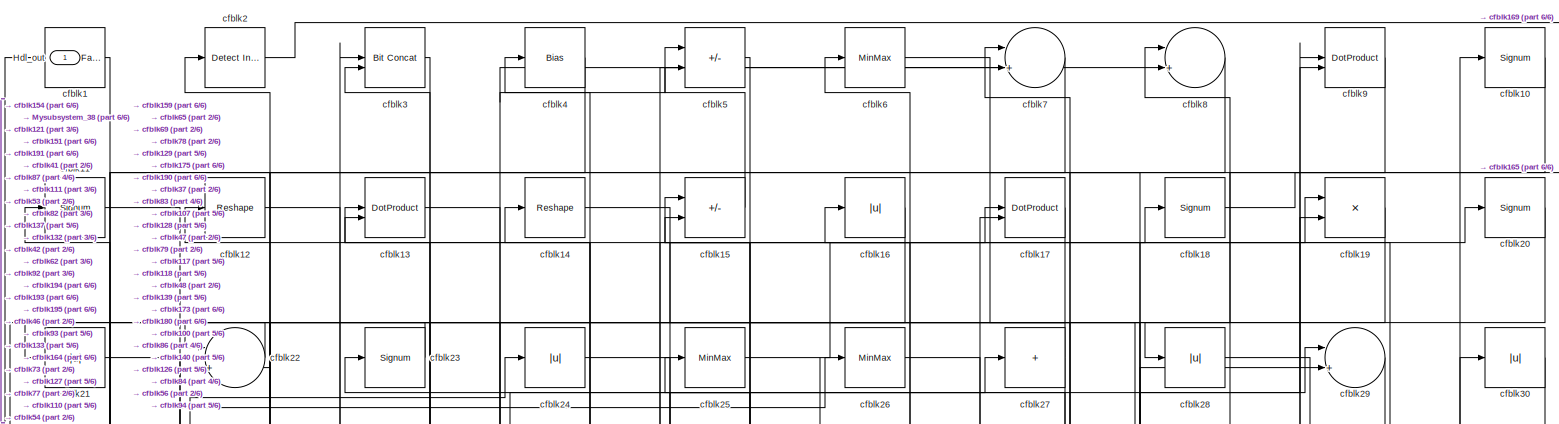
[diagram: root canvas - part 1/6, full width, top band]
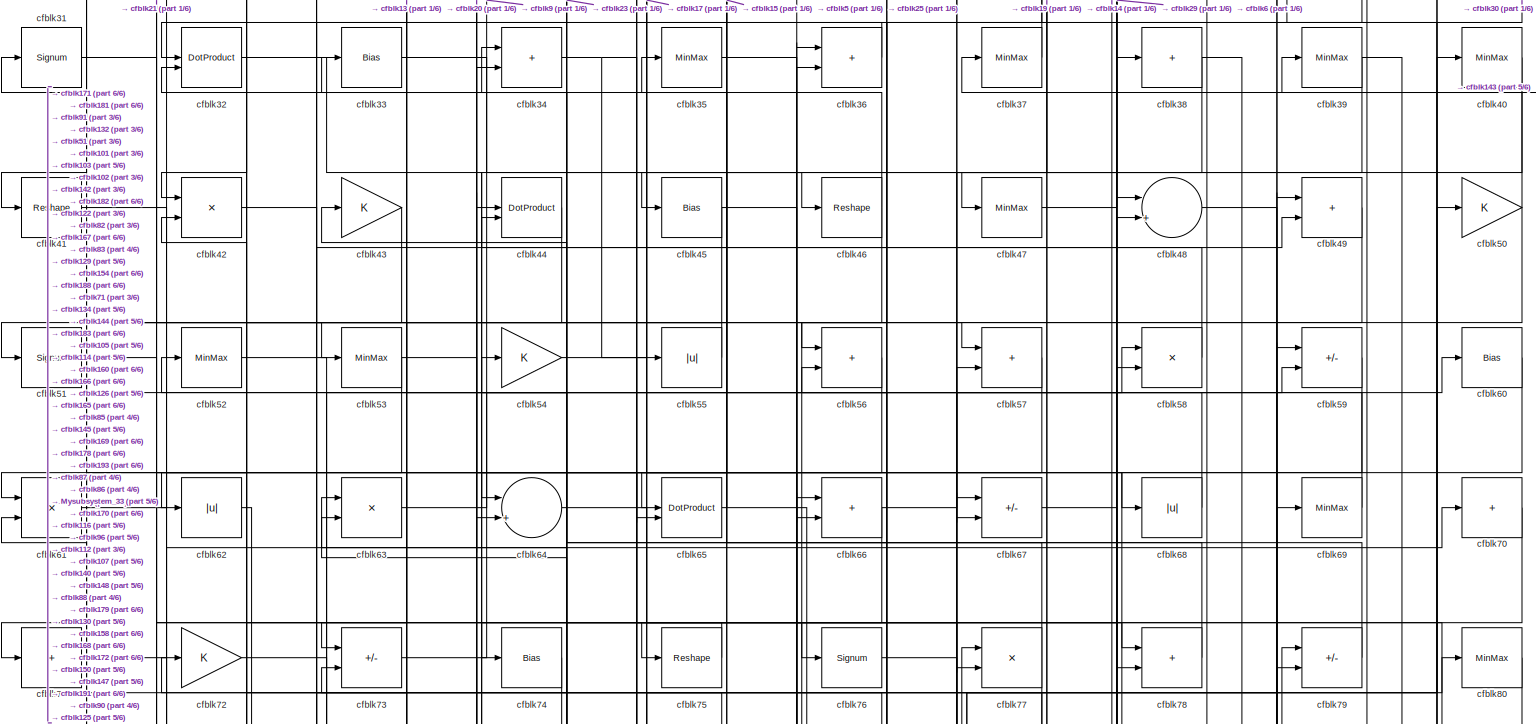
[diagram: root canvas - part 2/6, full width, top band]
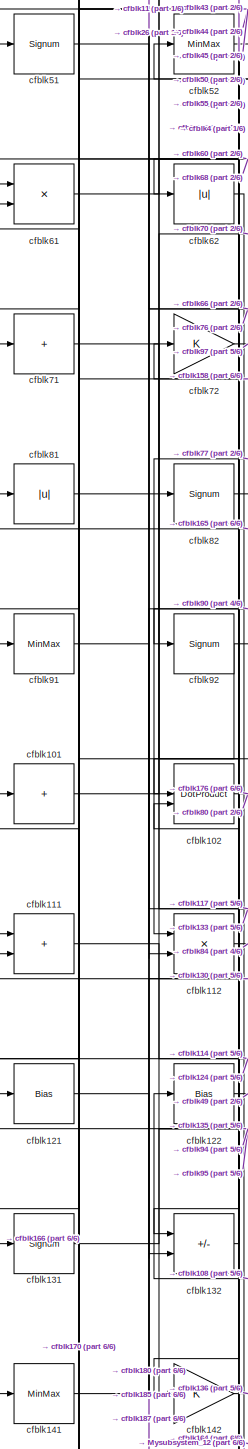
[diagram: root canvas - part 3/6, middle left region]
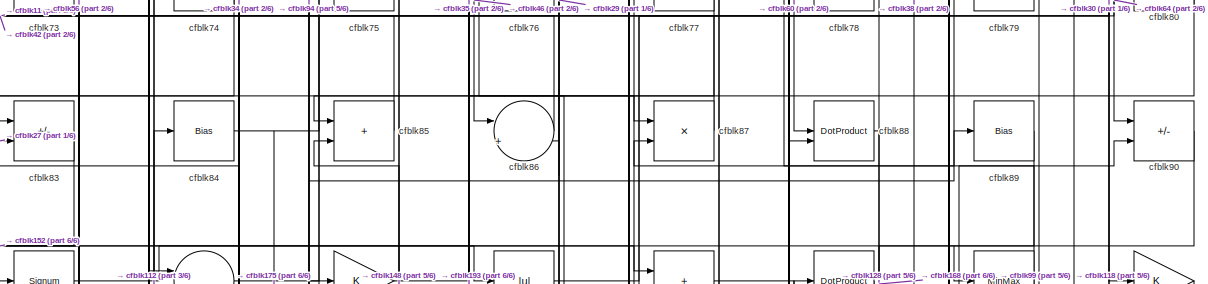
[diagram: root canvas - part 4/6, full width, middle band]
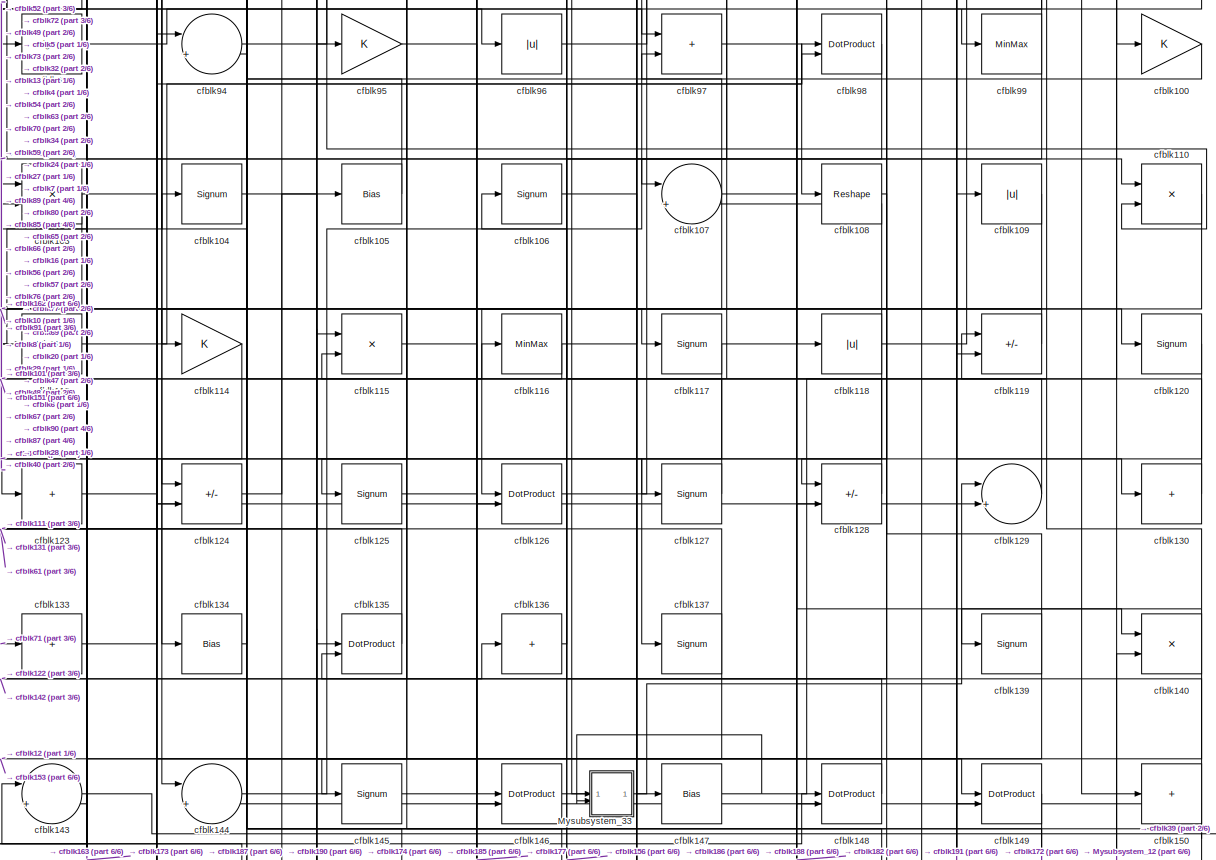
[diagram: root canvas - part 5/6, full width, middle band]
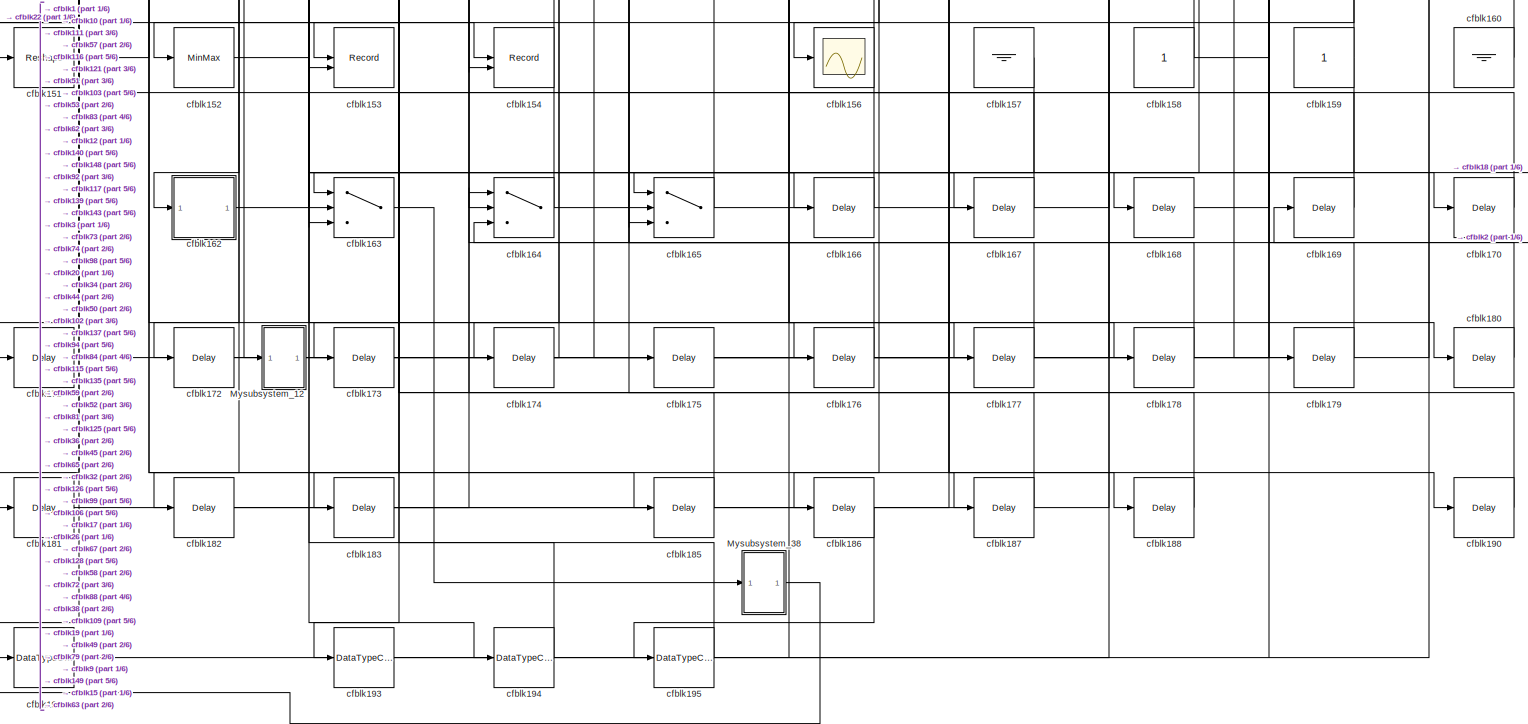
[diagram: root canvas - part 6/6, full width, bottom band]
MODEL slx_bdf30b50ef6f
KIND model
CONFIG AbsTol = auto
CONFIG EnableMultiTasking = off
CONFIG FixedStep = auto
CONFIG MaxStep = auto
CONFIG MinStep = auto
CONFIG RelTol = 1e-3
CONFIG SampleTimeConstraint = Unconstrained
CONFIG SolverName = VariableStepAuto
CONFIG StartTime = 0.0
CONFIG StopTime = 10.0
BLOCK [Outport] Hdl_out
  OutDataTypeStr = uint8
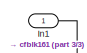
[diagram: Mysubsystem_12 - part 1/3, top left region]
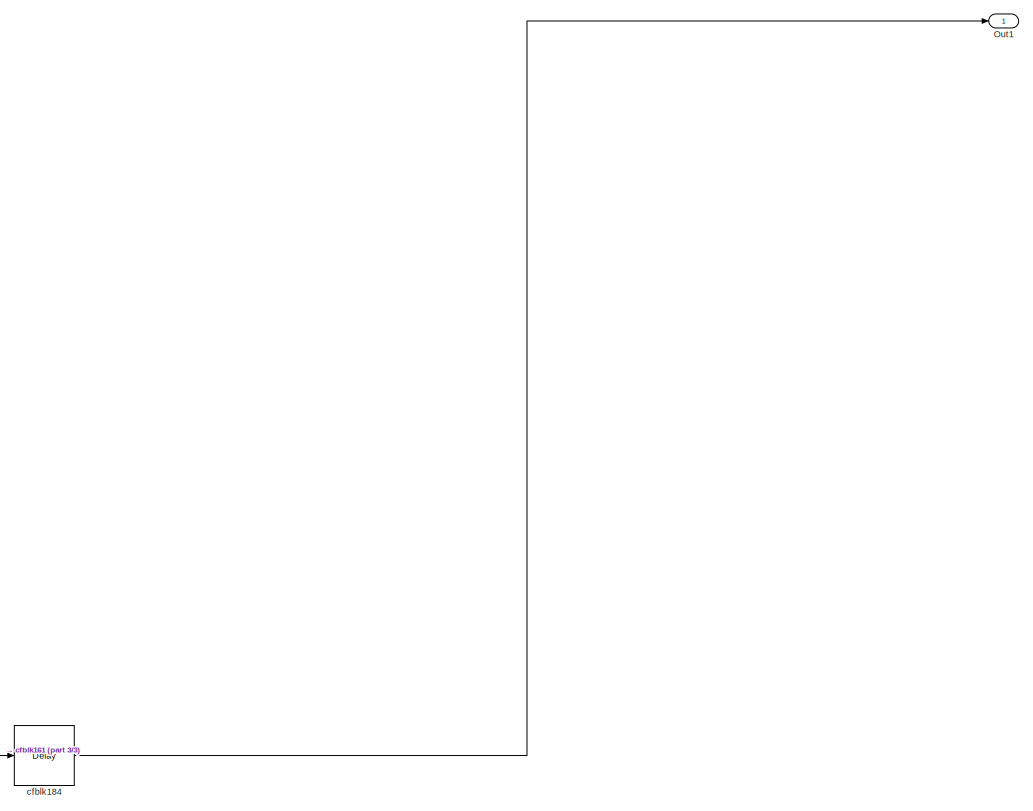
[diagram: Mysubsystem_12 - part 2/3, bottom center region]
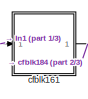
[diagram: Mysubsystem_12 - part 3/3, bottom left region]
BLOCK [SubSystem] Mysubsystem_12
  RTWFcnName = Mysubsystem_12
  RTWFcnNameOpts = User specified
  RTWFileNameOpts = Use function name
  RTWSystemCode = Reusable function
  TreatAsAtomicUnit = on
BLOCK [Inport] Mysubsystem_12/In1
BLOCK [Outport] Mysubsystem_12/Out1
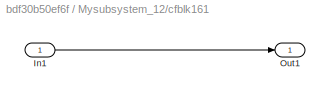
BLOCK [SubSystem] Mysubsystem_12/cfblk161
  LibrarySourceBlock = hdlsllib/Ports &\nSubsystems/Subsystem
BLOCK [Inport] Mysubsystem_12/cfblk161/In1
BLOCK [Outport] Mysubsystem_12/cfblk161/Out1
BLOCK [Delay] Mysubsystem_12/cfblk184
  InputPortMap = u0
  SampleTime = 1
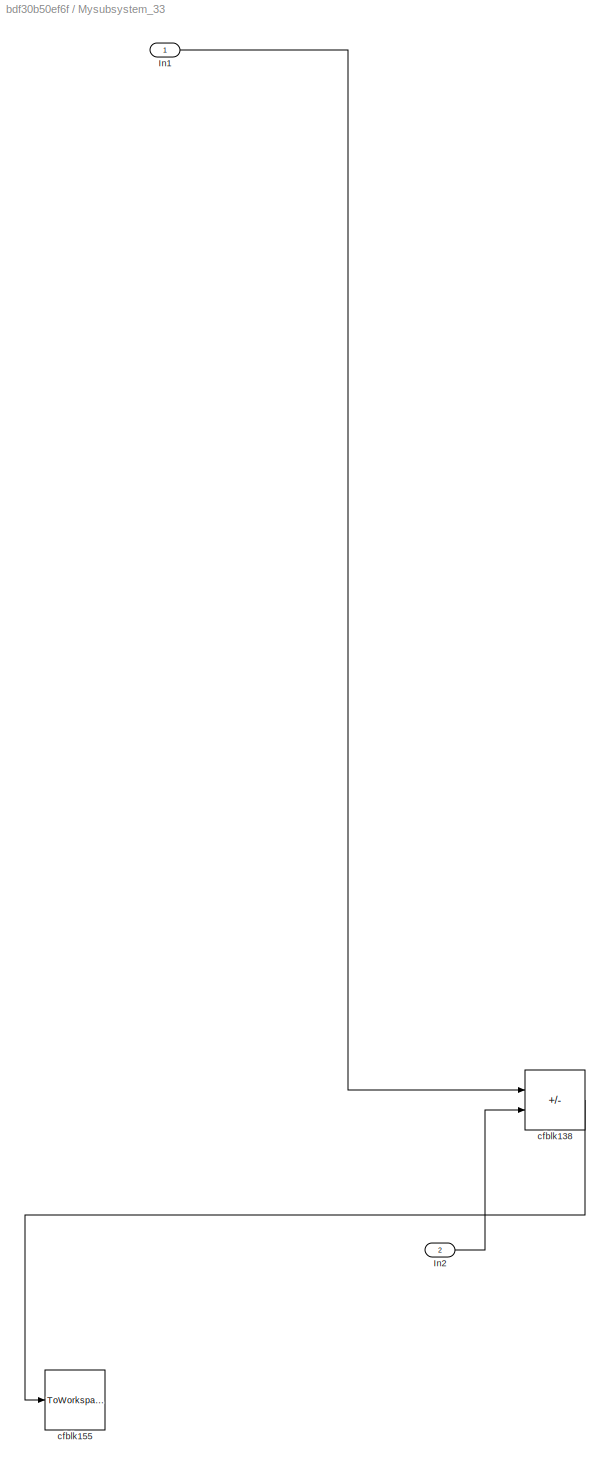
BLOCK [SubSystem] Mysubsystem_33
  RTWFcnName = Mysubsystem_33
  RTWFcnNameOpts = User specified
  RTWFileNameOpts = Use function name
  RTWSystemCode = Reusable function
  TreatAsAtomicUnit = on
BLOCK [Inport] Mysubsystem_33/In1
BLOCK [Inport] Mysubsystem_33/In2
  Port = 2
BLOCK [Sum] Mysubsystem_33/cfblk138
  IconShape = rectangular
  Inputs = +-
BLOCK [ToWorkspace] Mysubsystem_33/cfblk155
  MaxDataPoints = inf
  SampleTime = -1
  SaveFormat = Timeseries
  VariableName = simout
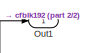
[diagram: Mysubsystem_38 - part 1/2, top left region]
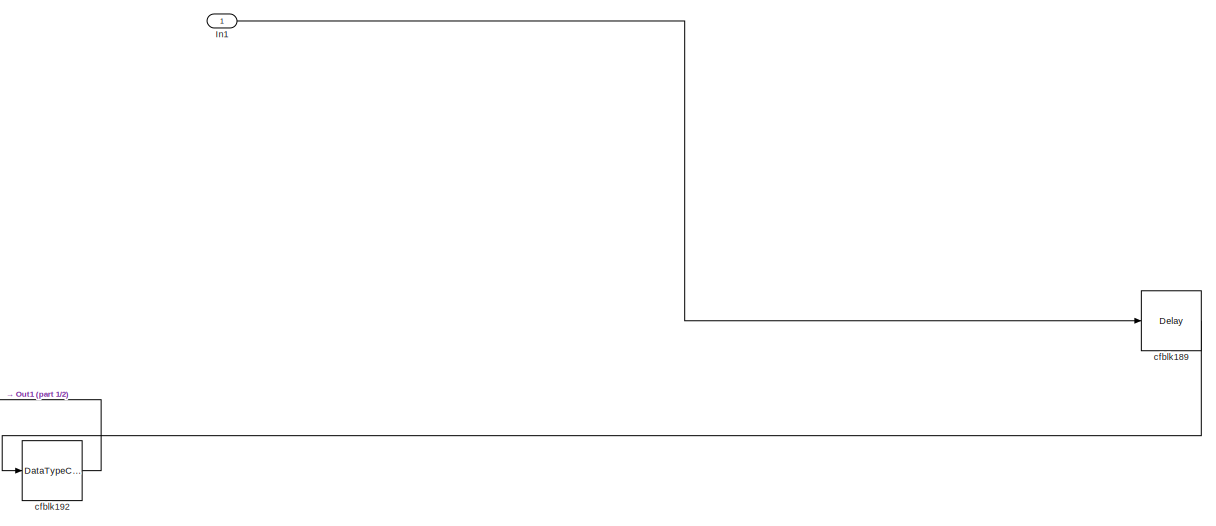
[diagram: Mysubsystem_38 - part 2/2, full width, bottom band]
BLOCK [SubSystem] Mysubsystem_38
  RTWFcnName = Mysubsystem_38
  RTWFcnNameOpts = User specified
  RTWFileNameOpts = Use function name
  RTWSystemCode = Reusable function
  TreatAsAtomicUnit = on
BLOCK [Inport] Mysubsystem_38/In1
BLOCK [Outport] Mysubsystem_38/Out1
BLOCK [Delay] Mysubsystem_38/cfblk189
  InputPortMap = u0
  SampleTime = 1
BLOCK [DataTypeConversion] Mysubsystem_38/cfblk192
  OutDataTypeStr = uint8
  RndMeth = Floor
  SaturateOnIntegerOverflow = off
BLOCK [Reference] cfblk1  REF=hdlsllib/Logic and Bit
Operations/Detect Fall
Nonpositive
  SourceBlock = hdlsllib/Logic and Bit\nOperations/Detect Fall\nNonpositive
  SourceType = Detect Fall Nonpositive
BLOCK [Signum] cfblk10
BLOCK [Gain] cfblk100
  OutDataTypeStr = uint8
BLOCK [Sum] cfblk101
  IconShape = rectangular
  Inputs = +
  OutDataTypeStr = uint8
BLOCK [DotProduct] cfblk102
  OutDataTypeStr = uint8
BLOCK [Product] cfblk103
  Inputs = */
  OutDataTypeStr = uint8
  RndMeth = Zero
  SaturateOnIntegerOverflow = on
BLOCK [Signum] cfblk104
BLOCK [Bias] cfblk105
  Bias = 0.0
  SaturateOnIntegerOverflow = off
BLOCK [Signum] cfblk106
BLOCK [Sum] cfblk107
  Inputs = |++
  OutDataTypeStr = uint8
BLOCK [Reshape] cfblk108
BLOCK [Abs] cfblk109
  OutDataTypeStr = uint8
  SaturateOnIntegerOverflow = off
BLOCK [Signum] cfblk11
BLOCK [Product] cfblk110
  Inputs = */
  OutDataTypeStr = uint8
  RndMeth = Zero
  SaturateOnIntegerOverflow = on
BLOCK [Sum] cfblk111
  IconShape = rectangular
  OutDataTypeStr = uint8
BLOCK [Product] cfblk112
  Inputs = */
  OutDataTypeStr = uint8
  RndMeth = Zero
  SaturateOnIntegerOverflow = on
BLOCK [MinMax] cfblk113
  OutDataTypeStr = uint8
BLOCK [Gain] cfblk114
  OutDataTypeStr = uint8
BLOCK [Product] cfblk115
  Inputs = */
  OutDataTypeStr = uint8
  RndMeth = Zero
  SaturateOnIntegerOverflow = on
BLOCK [MinMax] cfblk116
  OutDataTypeStr = uint8
BLOCK [Signum] cfblk117
BLOCK [Abs] cfblk118
  OutDataTypeStr = uint8
  SaturateOnIntegerOverflow = off
BLOCK [Sum] cfblk119
  IconShape = rectangular
  Inputs = +-
  OutDataTypeStr = uint8
BLOCK [Reshape] cfblk12
BLOCK [Signum] cfblk120
BLOCK [Bias] cfblk121
  Bias = 0.0
  SaturateOnIntegerOverflow = off
BLOCK [Bias] cfblk122
  Bias = 0.0
  SaturateOnIntegerOverflow = off
BLOCK [Sum] cfblk123
  IconShape = rectangular
  Inputs = +
  OutDataTypeStr = uint8
BLOCK [Sum] cfblk124
  IconShape = rectangular
  Inputs = +-
  OutDataTypeStr = uint8
BLOCK [Signum] cfblk125
BLOCK [DotProduct] cfblk126
  OutDataTypeStr = uint8
BLOCK [Signum] cfblk127
BLOCK [Sum] cfblk128
  IconShape = rectangular
  Inputs = +-
  OutDataTypeStr = uint8
BLOCK [Sum] cfblk129
  Inputs = |++
  OutDataTypeStr = uint8
BLOCK [DotProduct] cfblk13
  OutDataTypeStr = uint8
BLOCK [Sum] cfblk130
  IconShape = rectangular
  Inputs = +
  OutDataTypeStr = uint8
BLOCK [Signum] cfblk131
BLOCK [Sum] cfblk132
  IconShape = rectangular
  Inputs = +-
  OutDataTypeStr = uint8
BLOCK [Sum] cfblk133
  IconShape = rectangular
  Inputs = +
  OutDataTypeStr = uint8
BLOCK [Bias] cfblk134
  Bias = 0.0
  SaturateOnIntegerOverflow = off
BLOCK [DotProduct] cfblk135
  OutDataTypeStr = uint8
BLOCK [Sum] cfblk136
  IconShape = rectangular
  Inputs = +
  OutDataTypeStr = uint8
BLOCK [Signum] cfblk137
BLOCK [Signum] cfblk139
BLOCK [Reshape] cfblk14
BLOCK [Product] cfblk140
  Inputs = */
  OutDataTypeStr = uint8
  RndMeth = Zero
  SaturateOnIntegerOverflow = on
BLOCK [MinMax] cfblk141
  OutDataTypeStr = uint8
BLOCK [Gain] cfblk142
  OutDataTypeStr = uint8
BLOCK [Sum] cfblk143
  Inputs = |++
  OutDataTypeStr = uint8
BLOCK [Sum] cfblk144
  Inputs = |++
  OutDataTypeStr = uint8
BLOCK [Signum] cfblk145
BLOCK [DotProduct] cfblk146
  OutDataTypeStr = uint8
BLOCK [Bias] cfblk147
  Bias = 0.0
  SaturateOnIntegerOverflow = off
BLOCK [DotProduct] cfblk148
  OutDataTypeStr = uint8
BLOCK [DotProduct] cfblk149
  OutDataTypeStr = uint8
BLOCK [Sum] cfblk15
  IconShape = rectangular
  Inputs = +-
  OutDataTypeStr = uint8
BLOCK [Sum] cfblk150
  IconShape = rectangular
  Inputs = +
  OutDataTypeStr = uint8
BLOCK [Reshape] cfblk151
BLOCK [MinMax] cfblk152
  OutDataTypeStr = uint8
BLOCK [Record] cfblk153
  CompatibilityTag = XY
  FileSettingsInternal = {"entries":[{"content":{"excelSettings":{"content":{},"type":"Streamout.ExcelSettings"}},"type":"Streamout.FileSettingStorage","uuid":""}],"packageUris":["http:\/\/schema.mathworks.com\/mf0\/streamout_blocks\/R2020a"],"version":"1.0"}
  Layout = [1 1]
  SignalsInternal = {"entries":[{"content":{"signals":[{"content":{"blockPath":[],"dimensions":[1],"domain":"","lineColor":"#a2142f","plots":[1],"port":1,"signalID":27292,"signalName":"cfblk139"},"type":"RecordBlkView.Signal","uuid":""},{"content":{"blockPath":[],"dimensions":[1],"domain":"","lineColor":"#139fff","plots":[1],"port":2,"signalID":27295,"signalName":"cfblk140"},"type":"RecordBlkView.Signal","uuid":""}]}...<+144ch>
  VisualizationBindings = {"xyplotplugin":{"info":[{"series":[{"bindingParametersList":[{"parameter":"X-Axis","signalID":27292,"signalName":"cfblk139"},{"parameter":"Y-Axis","signalID":27295,"signalName":"cfblk140"}],"seriesID":50511}],"subplotID":1}]}}
  st = -1
BLOCK [Record] cfblk154
  CompatibilityTag = XY
  FileSettingsInternal = {"entries":[{"content":{"excelSettings":{"content":{},"type":"Streamout.ExcelSettings"}},"type":"Streamout.FileSettingStorage","uuid":""}],"packageUris":["http:\/\/schema.mathworks.com\/mf0\/streamout_blocks\/R2020a"],"version":"1.0"}
  Layout = [1 1]
  SignalsInternal = {"entries":[{"content":{"signals":[{"content":{"blockPath":[],"dimensions":[1],"domain":"","lineColor":"#a2142f","plots":[1],"port":1,"signalID":27284,"signalName":"cfblk22"},"type":"RecordBlkView.Signal","uuid":""},{"content":{"blockPath":[],"dimensions":[1],"domain":"","lineColor":"#139fff","plots":[1],"port":2,"signalID":27287,"signalName":"cfblk50"},"type":"RecordBlkView.Signal","uuid":""}]},"...<+142ch>
  VisualizationBindings = {"xyplotplugin":{"info":[{"series":[{"bindingParametersList":[{"parameter":"X-Axis","signalID":27284,"signalName":"cfblk22"},{"parameter":"Y-Axis","signalID":27287,"signalName":"cfblk50"}],"seriesID":3636}],"subplotID":1}]}}
  st = -1
BLOCK [Scope] cfblk156
  Floating = off
  NumInputPorts = 1
  ScopeSpecificationString = Simulink.scopes.TimeScopeBlockCfg('CurrentConfiguration', extmgr.ConfigurationSet(extmgr.Configuration('Core','General UI',true),extmgr.Configuration('Core','Source UI',true),extmgr.Configuration('Sources','WiredSimulink',true,'DataLoggingVariableName','ScopeData2','DataLoggingSaveFormat','Array','DataLoggingLimitDataPoints',true,'DataLoggingDecimation','1'),extmgr.Configuration('Visuals','Time Do...<+868ch>
BLOCK [Ground] cfblk157
BLOCK [Constant] cfblk158
  OutDataTypeStr = uint8
  SampleTime = -1
BLOCK [Constant] cfblk159
  OutDataTypeStr = uint8
  SampleTime = -1
BLOCK [Abs] cfblk16
  OutDataTypeStr = uint8
  SaturateOnIntegerOverflow = off
BLOCK [Ground] cfblk160
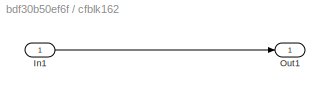
BLOCK [SubSystem] cfblk162
  LibrarySourceBlock = hdlsllib/Ports &\nSubsystems/Subsystem
BLOCK [Inport] cfblk162/In1
BLOCK [Outport] cfblk162/Out1
BLOCK [Switch] cfblk163
  InputSameDT = off
  OutDataTypeStr = uint8
  SaturateOnIntegerOverflow = off
BLOCK [Switch] cfblk164
  InputSameDT = off
  OutDataTypeStr = uint8
  SaturateOnIntegerOverflow = off
BLOCK [Switch] cfblk165
  InputSameDT = off
  OutDataTypeStr = uint8
  SaturateOnIntegerOverflow = off
BLOCK [Delay] cfblk166
  InputPortMap = u0
  SampleTime = 1
BLOCK [Delay] cfblk167
  InputPortMap = u0
  SampleTime = 1
BLOCK [Delay] cfblk168
  InputPortMap = u0
  SampleTime = 1
BLOCK [Delay] cfblk169
  InputPortMap = u0
  SampleTime = 1
BLOCK [DotProduct] cfblk17
  OutDataTypeStr = uint8
BLOCK [Delay] cfblk170
  InputPortMap = u0
  SampleTime = 1
BLOCK [Delay] cfblk171
  InputPortMap = u0
  SampleTime = 1
BLOCK [Delay] cfblk172
  InputPortMap = u0
  SampleTime = 1
BLOCK [Delay] cfblk173
  InputPortMap = u0
  SampleTime = 1
BLOCK [Delay] cfblk174
  InputPortMap = u0
  SampleTime = 1
BLOCK [Delay] cfblk175
  InputPortMap = u0
  SampleTime = 1
BLOCK [Delay] cfblk176
  InputPortMap = u0
  SampleTime = 1
BLOCK [Delay] cfblk177
  InputPortMap = u0
  SampleTime = 1
BLOCK [Delay] cfblk178
  InputPortMap = u0
  SampleTime = 1
BLOCK [Delay] cfblk179
  InputPortMap = u0
  SampleTime = 1
BLOCK [Signum] cfblk18
BLOCK [Delay] cfblk180
  InputPortMap = u0
  SampleTime = 1
BLOCK [Delay] cfblk181
  InputPortMap = u0
  SampleTime = 1
BLOCK [Delay] cfblk182
  InputPortMap = u0
  SampleTime = 1
BLOCK [Delay] cfblk183
  InputPortMap = u0
  SampleTime = 1
BLOCK [Delay] cfblk185
  InputPortMap = u0
  SampleTime = 1
BLOCK [Delay] cfblk186
  InputPortMap = u0
  SampleTime = 1
BLOCK [Delay] cfblk187
  InputPortMap = u0
  SampleTime = 1
BLOCK [Delay] cfblk188
  InputPortMap = u0
  SampleTime = 1
BLOCK [Product] cfblk19
  Inputs = */
  OutDataTypeStr = uint8
  RndMeth = Zero
  SaturateOnIntegerOverflow = on
BLOCK [Delay] cfblk190
  InputPortMap = u0
  SampleTime = 1
BLOCK [DataTypeConversion] cfblk191
  OutDataTypeStr = uint8
  RndMeth = Floor
  SaturateOnIntegerOverflow = off
BLOCK [DataTypeConversion] cfblk193
  OutDataTypeStr = uint8
  RndMeth = Floor
  SaturateOnIntegerOverflow = off
BLOCK [DataTypeConversion] cfblk194
  OutDataTypeStr = uint8
  RndMeth = Floor
  SaturateOnIntegerOverflow = off
BLOCK [DataTypeConversion] cfblk195
  OutDataTypeStr = uint8
  RndMeth = Floor
  SaturateOnIntegerOverflow = off
BLOCK [Reference] cfblk2  REF=simulink/Logic and Bit
Operations/Detect
Increase
  LibrarySourceBlock = hdlsllib/Logic and Bit\nOperations/Detect\nIncrease
  SourceBlock = simulink/Logic and Bit\nOperations/Detect\nIncrease
  SourceType = Detect Increase
BLOCK [Signum] cfblk20
BLOCK [Abs] cfblk21
  OutDataTypeStr = uint8
  SaturateOnIntegerOverflow = off
BLOCK [Sum] cfblk22
  Inputs = |++
  OutDataTypeStr = uint8
BLOCK [Signum] cfblk23
BLOCK [Abs] cfblk24
  OutDataTypeStr = uint8
  SaturateOnIntegerOverflow = off
BLOCK [MinMax] cfblk25
  OutDataTypeStr = uint8
BLOCK [MinMax] cfblk26
  OutDataTypeStr = uint8
BLOCK [Sum] cfblk27
  IconShape = rectangular
  Inputs = +
  OutDataTypeStr = uint8
BLOCK [Abs] cfblk28
  OutDataTypeStr = uint8
  SaturateOnIntegerOverflow = off
BLOCK [Sum] cfblk29
  Inputs = |++
  OutDataTypeStr = uint8
BLOCK [Reference] cfblk3  REF=hdlsllib/Logic and Bit
Operations/Bit Concat
  SourceBlock = hdlsllib/Logic and Bit\nOperations/Bit Concat
  SourceType = Bit Concat
BLOCK [Abs] cfblk30
  OutDataTypeStr = uint8
  SaturateOnIntegerOverflow = off
BLOCK [Signum] cfblk31
BLOCK [DotProduct] cfblk32
  OutDataTypeStr = uint8
BLOCK [Bias] cfblk33
  Bias = 0.0
  SaturateOnIntegerOverflow = off
BLOCK [Sum] cfblk34
  IconShape = rectangular
  OutDataTypeStr = uint8
BLOCK [MinMax] cfblk35
  OutDataTypeStr = uint8
BLOCK [Sum] cfblk36
  IconShape = rectangular
  OutDataTypeStr = uint8
BLOCK [MinMax] cfblk37
  OutDataTypeStr = uint8
BLOCK [Sum] cfblk38
  IconShape = rectangular
  Inputs = +
  OutDataTypeStr = uint8
BLOCK [MinMax] cfblk39
  OutDataTypeStr = uint8
BLOCK [Bias] cfblk4
  Bias = 0.0
  SaturateOnIntegerOverflow = off
BLOCK [MinMax] cfblk40
  OutDataTypeStr = uint8
BLOCK [Reshape] cfblk41
BLOCK [Product] cfblk42
  Inputs = */
  OutDataTypeStr = uint8
  RndMeth = Zero
  SaturateOnIntegerOverflow = on
BLOCK [Gain] cfblk43
  OutDataTypeStr = uint8
BLOCK [DotProduct] cfblk44
  OutDataTypeStr = uint8
BLOCK [Bias] cfblk45
  Bias = 0.0
  SaturateOnIntegerOverflow = off
BLOCK [Reshape] cfblk46
BLOCK [MinMax] cfblk47
  OutDataTypeStr = uint8
BLOCK [Sum] cfblk48
  Inputs = |++
  OutDataTypeStr = uint8
BLOCK [Sum] cfblk49
  IconShape = rectangular
  OutDataTypeStr = uint8
BLOCK [Sum] cfblk5
  IconShape = rectangular
  Inputs = +-
  OutDataTypeStr = uint8
BLOCK [Gain] cfblk50
  OutDataTypeStr = uint8
BLOCK [Signum] cfblk51
BLOCK [MinMax] cfblk52
  OutDataTypeStr = uint8
BLOCK [MinMax] cfblk53
  OutDataTypeStr = uint8
BLOCK [Gain] cfblk54
  OutDataTypeStr = uint8
BLOCK [Abs] cfblk55
  OutDataTypeStr = uint8
  SaturateOnIntegerOverflow = off
BLOCK [Sum] cfblk56
  IconShape = rectangular
  OutDataTypeStr = uint8
BLOCK [Sum] cfblk57
  IconShape = rectangular
  OutDataTypeStr = uint8
BLOCK [Product] cfblk58
  Inputs = */
  OutDataTypeStr = uint8
  RndMeth = Zero
  SaturateOnIntegerOverflow = on
BLOCK [Sum] cfblk59
  IconShape = rectangular
  Inputs = +-
  OutDataTypeStr = uint8
BLOCK [MinMax] cfblk6
  OutDataTypeStr = uint8
BLOCK [Bias] cfblk60
  Bias = 0.0
  SaturateOnIntegerOverflow = off
BLOCK [Product] cfblk61
  Inputs = */
  OutDataTypeStr = uint8
  RndMeth = Zero
  SaturateOnIntegerOverflow = on
BLOCK [Abs] cfblk62
  OutDataTypeStr = uint8
  SaturateOnIntegerOverflow = off
BLOCK [Product] cfblk63
  Inputs = */
  OutDataTypeStr = uint8
  RndMeth = Zero
  SaturateOnIntegerOverflow = on
BLOCK [Sum] cfblk64
  Inputs = |++
  OutDataTypeStr = uint8
BLOCK [DotProduct] cfblk65
  OutDataTypeStr = uint8
BLOCK [Sum] cfblk66
  IconShape = rectangular
  OutDataTypeStr = uint8
BLOCK [Sum] cfblk67
  IconShape = rectangular
  Inputs = +-
  OutDataTypeStr = uint8
BLOCK [Abs] cfblk68
  OutDataTypeStr = uint8
  SaturateOnIntegerOverflow = off
BLOCK [MinMax] cfblk69
  OutDataTypeStr = uint8
BLOCK [Sum] cfblk7
  Inputs = |++
  OutDataTypeStr = uint8
BLOCK [Sum] cfblk70
  IconShape = rectangular
  Inputs = +
  OutDataTypeStr = uint8
BLOCK [Sum] cfblk71
  IconShape = rectangular
  Inputs = +
  OutDataTypeStr = uint8
BLOCK [Gain] cfblk72
  OutDataTypeStr = uint8
BLOCK [Sum] cfblk73
  IconShape = rectangular
  Inputs = +-
  OutDataTypeStr = uint8
BLOCK [Bias] cfblk74
  Bias = 0.0
  SaturateOnIntegerOverflow = off
BLOCK [Reshape] cfblk75
BLOCK [Signum] cfblk76
BLOCK [Product] cfblk77
  Inputs = */
  OutDataTypeStr = uint8
  RndMeth = Zero
  SaturateOnIntegerOverflow = on
BLOCK [Sum] cfblk78
  IconShape = rectangular
  OutDataTypeStr = uint8
BLOCK [Sum] cfblk79
  IconShape = rectangular
  Inputs = +-
  OutDataTypeStr = uint8
BLOCK [Sum] cfblk8
  Inputs = |++
  OutDataTypeStr = uint8
BLOCK [MinMax] cfblk80
  OutDataTypeStr = uint8
BLOCK [Abs] cfblk81
  OutDataTypeStr = uint8
  SaturateOnIntegerOverflow = off
BLOCK [Signum] cfblk82
BLOCK [Sum] cfblk83
  IconShape = rectangular
  Inputs = +-
  OutDataTypeStr = uint8
BLOCK [Bias] cfblk84
  Bias = 0.0
  SaturateOnIntegerOverflow = off
BLOCK [Sum] cfblk85
  IconShape = rectangular
  OutDataTypeStr = uint8
BLOCK [Sum] cfblk86
  Inputs = |++
  OutDataTypeStr = uint8
BLOCK [Product] cfblk87
  Inputs = */
  OutDataTypeStr = uint8
  RndMeth = Zero
  SaturateOnIntegerOverflow = on
BLOCK [DotProduct] cfblk88
  OutDataTypeStr = uint8
BLOCK [Bias] cfblk89
  Bias = 0.0
  SaturateOnIntegerOverflow = off
BLOCK [DotProduct] cfblk9
  OutDataTypeStr = uint8
BLOCK [Sum] cfblk90
  IconShape = rectangular
  Inputs = +-
  OutDataTypeStr = uint8
BLOCK [MinMax] cfblk91
  OutDataTypeStr = uint8
BLOCK [Signum] cfblk92
BLOCK [Signum] cfblk93
BLOCK [Sum] cfblk94
  Inputs = |++
  OutDataTypeStr = uint8
BLOCK [Gain] cfblk95
  OutDataTypeStr = uint8
BLOCK [Abs] cfblk96
  OutDataTypeStr = uint8
  SaturateOnIntegerOverflow = off
BLOCK [Sum] cfblk97
  IconShape = rectangular
  OutDataTypeStr = uint8
BLOCK [DotProduct] cfblk98
  OutDataTypeStr = uint8
BLOCK [MinMax] cfblk99
  OutDataTypeStr = uint8
LINE Mysubsystem_12/In1:1 -> Mysubsystem_12/cfblk161:1
LINE Mysubsystem_12/cfblk161/In1:1 -> Mysubsystem_12/cfblk161/Out1:1
LINE Mysubsystem_12/cfblk161:1 -> Mysubsystem_12/cfblk184:1
LINE Mysubsystem_12/cfblk184:1 -> Mysubsystem_12/Out1:1
LINE Mysubsystem_12:1 -> cfblk140:2
LINE Mysubsystem_33/In1:1 -> Mysubsystem_33/cfblk138:1
LINE Mysubsystem_33/In2:1 -> Mysubsystem_33/cfblk138:2
LINE Mysubsystem_33/cfblk138:1 -> Mysubsystem_33/cfblk155:1
LINE Mysubsystem_38/In1:1 -> Mysubsystem_38/cfblk189:1
LINE Mysubsystem_38/cfblk189:1 -> Mysubsystem_38/cfblk192:1
LINE Mysubsystem_38/cfblk192:1 -> Mysubsystem_38/Out1:1
LINE Mysubsystem_38:1 -> cfblk1:1
LINE cfblk100:1 -> cfblk97:2
LINE cfblk101:1 -> cfblk70:1
NET cfblk102:1 -> cfblk176:1, cfblk80:1
NET cfblk103:1 -> cfblk120:1, cfblk162:1
LINE cfblk104:1 -> cfblk146:2
LINE cfblk105:1 -> cfblk63:1
LINE cfblk106:1 -> cfblk188:1
NET cfblk107:1 -> cfblk13:1, cfblk145:1, cfblk20:1, cfblk48:2
LINE cfblk108:1 -> cfblk122:1
NET cfblk109:1 -> cfblk119:2, cfblk126:1
LINE cfblk10:1 -> cfblk151:1
LINE cfblk110:1 -> cfblk123:1
NET cfblk111:1 -> cfblk124:2, cfblk26:1
LINE cfblk112:1 -> cfblk84:1
LINE cfblk113:1 -> cfblk98:1
LINE cfblk114:1 -> cfblk141:1
LINE cfblk115:1 -> cfblk146:1
NET cfblk116:1 -> cfblk115:2, cfblk57:2
NET cfblk117:1 -> cfblk163:1, cfblk29:1
NET cfblk118:1 -> cfblk107:2, cfblk137:1, cfblk90:2
LINE cfblk119:1 -> cfblk113:1
LINE cfblk11:1 -> cfblk82:1
LINE cfblk120:1 -> cfblk124:1
LINE cfblk121:1 -> cfblk185:1
LINE cfblk122:1 -> cfblk49:2
NET cfblk123:1 -> cfblk149:1, cfblk98:2
LINE cfblk124:1 -> cfblk105:1
LINE cfblk125:1 -> cfblk177:1
NET cfblk126:1 -> cfblk10:1, cfblk149:2, cfblk186:1
LINE cfblk127:1 -> cfblk4:1
NET cfblk128:1 -> cfblk16:1, cfblk7:1
LINE cfblk129:1 -> cfblk6:1
LINE cfblk12:1 -> cfblk194:1
LINE cfblk130:1 -> cfblk101:1
LINE cfblk131:1 -> cfblk94:1
LINE cfblk132:1 -> cfblk2:1
NET cfblk133:1 -> cfblk5:2, cfblk8:2
NET cfblk134:1 -> cfblk104:1, cfblk54:1
NET cfblk135:1 -> cfblk111:1, cfblk61:2
LINE cfblk136:1 -> cfblk106:1
NET cfblk137:1 -> cfblk174:1, cfblk24:1
NET cfblk139:1 -> cfblk153:1, cfblk8:1
LINE cfblk13:1 -> cfblk65:2
NET cfblk140:1 -> cfblk119:1, cfblk12:1, cfblk139:1, cfblk153:2
LINE cfblk141:1 -> cfblk95:1
LINE cfblk142:1 -> cfblk136:1
LINE cfblk143:1 -> cfblk39:1
LINE cfblk144:1 -> cfblk77:1
LINE cfblk145:1 -> cfblk66:1
LINE cfblk146:1 -> cfblk129:1
NET cfblk147:1 -> Mysubsystem_33:2, cfblk40:1
NET cfblk148:1 -> cfblk135:2, cfblk85:2
LINE cfblk149:1 -> cfblk172:1
LINE cfblk14:1 -> cfblk79:1
NET cfblk150:1 -> cfblk144:2, cfblk56:2
LINE cfblk151:1 -> cfblk116:1
LINE cfblk152:1 -> cfblk167:1
LINE cfblk157:1 -> cfblk163:2
NET cfblk158:1 -> cfblk59:1, cfblk72:1
NET cfblk159:1 -> cfblk15:1, cfblk163:3
LINE cfblk15:1 -> cfblk5:1
LINE cfblk160:1 -> cfblk63:2
LINE cfblk162/In1:1 -> cfblk162/Out1:1
LINE cfblk162:1 -> cfblk148:1
LINE cfblk163:1 -> Mysubsystem_38:1
NET cfblk164:1 -> cfblk102:2, cfblk18:1
NET cfblk165:1 -> cfblk38:1, cfblk52:1, cfblk81:1
LINE cfblk166:1 -> cfblk32:2
LINE cfblk167:1 -> cfblk73:2
LINE cfblk168:1 -> cfblk79:2
LINE cfblk169:1 -> cfblk36:1
LINE cfblk16:1 -> cfblk93:1
LINE cfblk170:1 -> cfblk111:2
LINE cfblk171:1 -> cfblk58:2
LINE cfblk172:1 -> cfblk49:1
LINE cfblk173:1 -> cfblk19:2
LINE cfblk174:1 -> cfblk94:2
LINE cfblk175:1 -> cfblk17:2
LINE cfblk176:1 -> cfblk164:1
LINE cfblk177:1 -> cfblk115:1
LINE cfblk178:1 -> cfblk165:2
LINE cfblk179:1 -> cfblk164:3
LINE cfblk17:1 -> cfblk92:1
LINE cfblk180:1 -> cfblk9:1
LINE cfblk181:1 -> cfblk34:2
LINE cfblk182:1 -> cfblk128:2
LINE cfblk183:1 -> cfblk67:1
LINE cfblk185:1 -> cfblk135:1
LINE cfblk186:1 -> cfblk195:1
LINE cfblk187:1 -> cfblk143:1
LINE cfblk188:1 -> cfblk44:1
LINE cfblk18:1 -> cfblk165:1
LINE cfblk190:1 -> cfblk103:2
NET cfblk191:1 -> cfblk109:1, cfblk50:1
NET cfblk193:1 -> cfblk36:2, cfblk88:2
LINE cfblk194:1 -> cfblk3:1
LINE cfblk195:1 -> cfblk3:2
NET cfblk19:1 -> cfblk41:1, cfblk47:1
LINE cfblk1:1 -> cfblk191:1
NET cfblk20:1 -> cfblk164:2, cfblk42:1
LINE cfblk21:1 -> cfblk53:1
LINE cfblk22:1 -> cfblk154:1
LINE cfblk23:1 -> cfblk21:1
LINE cfblk24:1 -> cfblk110:2
NET cfblk25:1 -> cfblk19:1, cfblk78:1
LINE cfblk26:1 -> cfblk190:1
NET cfblk27:1 -> cfblk22:1, cfblk83:2
LINE cfblk28:1 -> cfblk100:1
LINE cfblk29:1 -> cfblk86:2
LINE cfblk2:1 -> cfblk169:1
LINE cfblk30:1 -> cfblk56:1
LINE cfblk31:1 -> cfblk77:2
NET cfblk32:1 -> cfblk134:1, cfblk142:1
LINE cfblk33:1 -> cfblk46:1
NET cfblk34:1 -> cfblk126:2, cfblk55:1
LINE cfblk35:1 -> cfblk87:1
LINE cfblk36:1 -> cfblk32:1
LINE cfblk37:1 -> cfblk14:1
NET cfblk38:1 -> cfblk179:1, cfblk45:1, cfblk85:1
NET cfblk39:1 -> cfblk150:1, cfblk67:2
LINE cfblk3:1 -> cfblk193:1
LINE cfblk40:1 -> cfblk64:1
LINE cfblk41:1 -> cfblk103:1
LINE cfblk42:1 -> cfblk57:1
LINE cfblk43:1 -> cfblk61:1
NET cfblk44:1 -> cfblk73:1, cfblk91:1
NET cfblk45:1 -> cfblk102:1, cfblk178:1
NET cfblk46:1 -> cfblk13:2, cfblk86:1
NET cfblk47:1 -> cfblk148:2, cfblk29:2
LINE cfblk48:1 -> cfblk130:1
LINE cfblk49:1 -> cfblk143:2
NET cfblk4:1 -> cfblk121:1, cfblk62:1
NET cfblk50:1 -> cfblk154:2, cfblk37:1, cfblk71:1
NET cfblk51:1 -> cfblk187:1, cfblk76:1
LINE cfblk52:1 -> cfblk110:1
NET cfblk53:1 -> cfblk181:1, cfblk182:1, cfblk64:2
NET cfblk54:1 -> cfblk17:1, cfblk66:2, cfblk78:2
LINE cfblk55:1 -> cfblk51:1
LINE cfblk56:1 -> cfblk83:1
LINE cfblk57:1 -> cfblk171:1
LINE cfblk58:1 -> cfblk44:2
NET cfblk59:1 -> cfblk144:1, cfblk165:3
LINE cfblk5:1 -> cfblk65:1
NET cfblk60:1 -> cfblk132:2, cfblk88:1
LINE cfblk61:1 -> cfblk68:1
LINE cfblk62:1 -> Mysubsystem_12:1
LINE cfblk63:1 -> cfblk58:1
LINE cfblk64:1 -> cfblk90:1
NET cfblk65:1 -> Mysubsystem_33:1, cfblk170:1, cfblk35:1
NET cfblk66:1 -> cfblk132:1, cfblk59:2
LINE cfblk67:1 -> cfblk140:1
LINE cfblk68:1 -> cfblk31:1
NET cfblk69:1 -> cfblk15:2, cfblk33:1
NET cfblk6:1 -> cfblk118:1, cfblk48:1
NET cfblk70:1 -> cfblk114:1, cfblk75:1
LINE cfblk71:1 -> cfblk133:1
LINE cfblk72:1 -> cfblk97:1
NET cfblk73:1 -> cfblk129:2, cfblk9:2
LINE cfblk74:1 -> cfblk183:1
LINE cfblk75:1 -> cfblk74:1
LINE cfblk76:1 -> cfblk147:1
NET cfblk77:1 -> cfblk112:1, cfblk23:1
LINE cfblk78:1 -> cfblk43:1
LINE cfblk79:1 -> cfblk25:1
LINE cfblk7:1 -> cfblk22:2
LINE cfblk80:1 -> cfblk125:1
LINE cfblk81:1 -> cfblk180:1
LINE cfblk82:1 -> cfblk60:1
LINE cfblk83:1 -> cfblk152:1
NET cfblk84:1 -> cfblk175:1, cfblk30:1
LINE cfblk85:1 -> cfblk42:2
LINE cfblk86:1 -> cfblk34:1
LINE cfblk87:1 -> cfblk11:1
LINE cfblk88:1 -> cfblk168:1
NET cfblk89:1 -> cfblk128:1, cfblk99:1
LINE cfblk8:1 -> cfblk107:1
LINE cfblk90:1 -> cfblk112:2
LINE cfblk91:1 -> cfblk117:1
NET cfblk92:1 -> cfblk131:1, cfblk166:1
LINE cfblk93:1 -> cfblk96:1
NET cfblk94:1 -> cfblk27:1, cfblk7:2, cfblk89:1
LINE cfblk95:1 -> cfblk127:1
LINE cfblk96:1 -> cfblk69:1
LINE cfblk97:1 -> cfblk108:1
LINE cfblk98:1 -> cfblk173:1
NET cfblk99:1 -> cfblk156:1, cfblk87:2
LINE cfblk9:1 -> cfblk28:1
note: NET lines group one-source signal fan-out (src -> all destinations, sorted); 1:1 wires keep LINE
